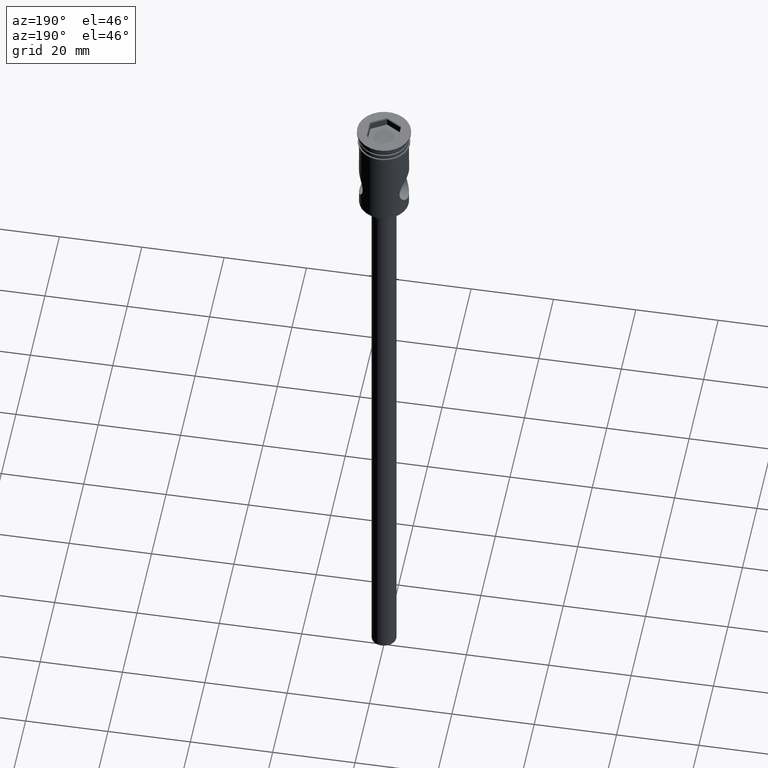
[diagram: clean part render]
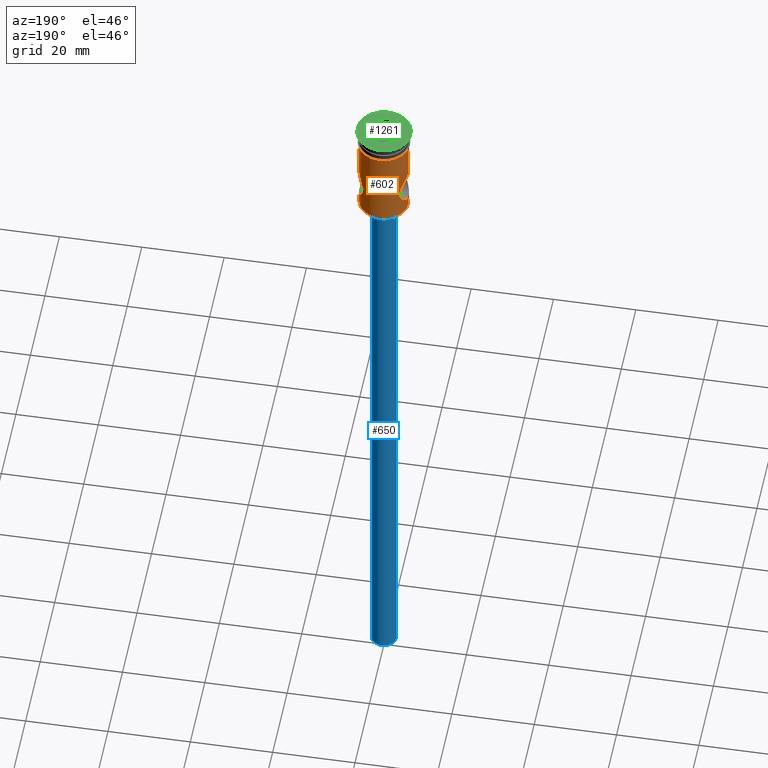
[diagram: same view with three faces highlighted in distinct colors, each labeled with its STEP entity id]
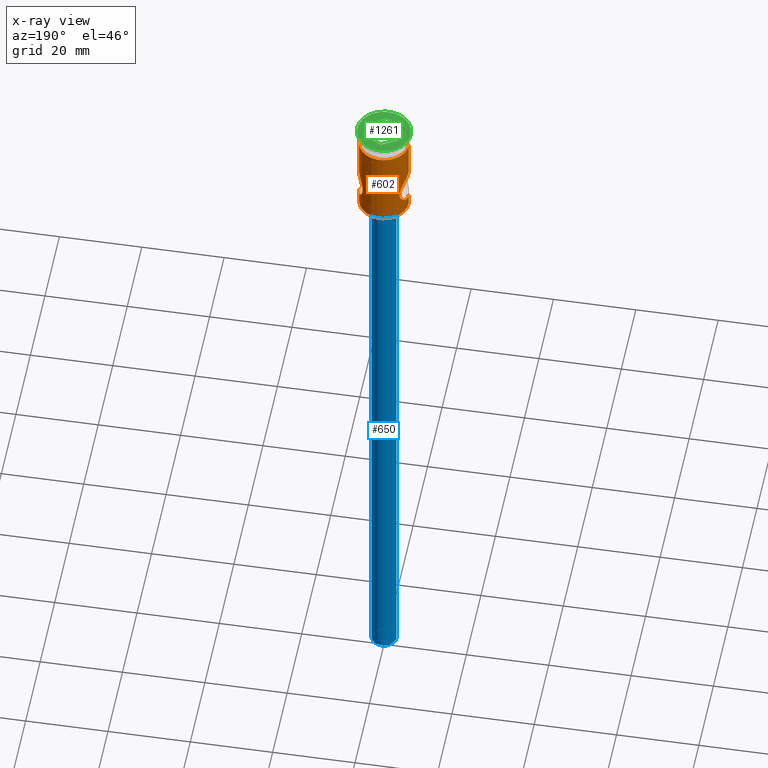
[diagram: x-ray of the same camera — body ghosted, the three highlighted faces saturated]
A machine part, auxiliary view with three faces highlighted in distinct colors.
The next image is the same camera in x-ray (body ghosted, the three faces saturated) — at least one of them is partly hidden behind the body in this view.
Their STEP definitions:

[orange] entity #602 — the highlighted cylindrical surface (edge-blend (fillet) strip) has radius 6 mm, axis along (-0, -0, 1).
#5 = CARTESIAN_POINT ( 'NONE',  ( 5.383168773068585544, 2.657528158016941866, -20.00025070472699440 ) ) ;
#18 = CARTESIAN_POINT ( 'NONE',  ( 5.383657517074641241, 2.656633614838565194, -13.99882376761189029 ) ) ;
#31 = VERTEX_POINT ( 'NONE', #142 ) ;
#32 = CARTESIAN_POINT ( 'NONE',  ( 5.857601659980624653, 1.323462767520508176, -13.21610827440704128 ) ) ;
#50 = DIRECTION ( 'NONE',  ( -0.000000000000000000, -0.000000000000000000, 1.000000000000000000 ) ) ;
#62 = CARTESIAN_POINT ( 'NONE',  ( -4.695721265758814766, 3.735538961856250673, -15.56388279734573032 ) ) ;
#77 = VERTEX_POINT ( 'NONE', #1366 ) ;
#94 = DIRECTION ( 'NONE',  ( -0.000000000000000000, -0.000000000000000000, 1.000000000000000000 ) ) ;
#124 = CARTESIAN_POINT ( 'NONE',  ( 4.591041808995887763, 3.863597314276563388, -18.06934695620068965 ) ) ;
#138 = CARTESIAN_POINT ( 'NONE',  ( 5.191140967328530031, 3.015547360259486442, -14.35969034782403853 ) ) ;
#141 = CIRCLE ( 'NONE', #577, 6.000000000000000000 ) ;
#142 = CARTESIAN_POINT ( 'NONE',  ( 5.999999999999997335, 0.000000000000000000, -23.80000000000000782 ) ) ;
#147 = CARTESIAN_POINT ( 'NONE',  ( 4.478683235531862650, 3.992711086781057350, -17.27669624262845005 ) ) ;
#170 = CARTESIAN_POINT ( 'NONE',  ( -5.476104105474132844, 2.462661959051749783, -13.83753213007002181 ) ) ;
#177 = CARTESIAN_POINT ( 'NONE',  ( 5.999999999999997335, 0.000000000000000000, 0.000000000000000000 ) ) ;
#178 = CARTESIAN_POINT ( 'NONE',  ( -5.192588128681414616, 3.012973207551337129, -19.64309212195293952 ) ) ;
#180 = ORIENTED_EDGE ( 'NONE', *, *, #445, .T. ) ;
#184 = CARTESIAN_POINT ( 'NONE',  ( -5.649709804834211369, 2.033012498713174576, -20.45435978024745438 ) ) ;
#191 = CARTESIAN_POINT ( 'NONE',  ( -5.647852088979878005, 2.038182248857265844, -13.54866401616081362 ) ) ;
#204 = ORIENTED_EDGE ( 'NONE', *, *, #406, .F. ) ;
#222 = DIRECTION ( 'NONE',  ( -0.000000000000000000, -0.000000000000000000, 1.000000000000000000 ) ) ;
#241 = CARTESIAN_POINT ( 'NONE',  ( 5.999999999999997335, 0.000000000000000000, -21.00000000000000355 ) ) ;
#249 = CARTESIAN_POINT ( 'NONE',  ( 5.092532074683503218, 3.177271535275488112, -14.55676189133447451 ) ) ;
#257 = CARTESIAN_POINT ( 'NONE',  ( 4.813287987224462938, 3.584502662014734664, -15.20585560854699558 ) ) ;
#265 = CARTESIAN_POINT ( 'NONE',  ( -5.999999999999997335, 0.000000000000000000, -21.00000000000000000 ) ) ;
#274 = CARTESIAN_POINT ( 'NONE',  ( -5.383857059222176389, 2.656136703825481504, -20.00147985586160004 ) ) ;
#286 = CARTESIAN_POINT ( 'NONE',  ( -4.590872927876621823, 3.863799755992654905, -18.06881075205813403 ) ) ;
#287 = CARTESIAN_POINT ( 'NONE',  ( -5.999999999999997335, 7.346847929928983029E-16, -13.00000000000000178 ) ) ;
#299 = CARTESIAN_POINT ( 'NONE',  ( -4.471969905858020233, 4.000185648662160531, -16.72948623710962224 ) ) ;
#306 = VECTOR ( 'NONE', #1023, 1000.000000000000000 ) ;
#314 = B_SPLINE_CURVE_WITH_KNOTS ( 'NONE', 3,
 ( #569, #923, #1176, #837, #597, #954, #191, #170, #501, #393, #607, #1068, #978, #62, #1083, #960, #1420, #1305, #299, #1412, #1201, #286, #724, #1406, #1194, #1058, #178, #274, #616, #184, #1185, #381, #404, #830, #857, #863 ),
 .UNSPECIFIED., .F., .F.,
 ( 4, 2, 2, 2, 2, 2, 2, 2, 2, 2, 2, 2, 2, 2, 2, 2, 2, 4 ),
 ( 0.01292789089967558668, 0.01373481658167571492, 0.01454174226367584317, 0.01534866794567596969, 0.01615559362767609794, 0.01696251930967622445, 0.01776944499167635444, 0.01817290783267641943, 0.01857637067367648442, 0.01938329635567661441, 0.02019022203767674092, 0.02099714771967687091, 0.02180407340167700089, 0.02261099908367712741, 0.02341792476567725739, 0.02422485044767738738, 0.02503177612967751736, 0.02583870181167764735 ),
 .UNSPECIFIED. ) ;
#345 = ORIENTED_EDGE ( 'NONE', *, *, #369, .F. ) ;
#348 = CARTESIAN_POINT ( 'NONE',  ( 4.904969006695426792, 3.459781783056854465, -19.02337662573056321 ) ) ;
#357 = ORIENTED_EDGE ( 'NONE', *, *, #838, .F. ) ;
#365 = CARTESIAN_POINT ( 'NONE',  ( 5.726993910597675708, 1.806673378235915450, -20.57837121075087694 ) ) ;
#369 = EDGE_CURVE ( 'NONE', #31, #77, #529, .T. ) ;
#381 = CARTESIAN_POINT ( 'NONE',  ( -5.856852607584092318, 1.326405963621358985, -20.78272040109924745 ) ) ;
#393 = CARTESIAN_POINT ( 'NONE',  ( -5.189877563605834965, 3.017637752822129205, -14.36220871751616635 ) ) ;
#395 = EDGE_CURVE ( 'NONE', #1356, #1154, #141, .T. ) ;
#404 = CARTESIAN_POINT ( 'NONE',  ( -5.910224399078535029, 1.067455424808948061, -20.86424616908553276 ) ) ;
#406 = EDGE_CURVE ( 'NONE', #1323, #1356, #645, .T. ) ;
#423 = DIRECTION ( 'NONE',  ( 1.000000000000000000, 0.000000000000000000, 0.000000000000000000 ) ) ;
#427 = EDGE_LOOP ( 'NONE', ( #1051, #806, #357, #180, #1108, #204, #488, #345 ) ) ;
#435 = CARTESIAN_POINT ( 'NONE',  ( -5.999999999999997335, 7.347880794884116778E-16, 0.000000000000000000 ) ) ;
#445 = EDGE_CURVE ( 'NONE', #587, #1154, #763, .T. ) ;
#458 = CARTESIAN_POINT ( 'NONE',  ( 4.496571596818668581, 3.973146032982571185, -16.46466415118837645 ) ) ;
#461 = CARTESIAN_POINT ( 'NONE',  ( -5.999999999999997335, 7.347880794884116778E-16, -23.80000000000000782 ) ) ;
#475 = CARTESIAN_POINT ( 'NONE',  ( 5.963516332756118032, 0.6739983983561916858, -13.05488329690675364 ) ) ;
#488 = ORIENTED_EDGE ( 'NONE', *, *, #950, .F. ) ;
#501 = CARTESIAN_POINT ( 'NONE',  ( -5.381440153112927227, 2.661027735845785891, -14.00283269631731109 ) ) ;
#529 = LINE ( 'NONE', #977, #1230 ) ;
#552 = CARTESIAN_POINT ( 'NONE',  ( 5.999999999999999112, 0.1348394930680404946, -13.00000000000000355 ) ) ;
#566 = CARTESIAN_POINT ( 'NONE',  ( 5.999999999999996447, 0.2736934833754733898, -21.00000000000001066 ) ) ;
#569 = CARTESIAN_POINT ( 'NONE',  ( -5.999999999999997335, 7.346847929928983029E-16, -13.00000000000000178 ) ) ;
#573 = CARTESIAN_POINT ( 'NONE',  ( 5.999999999999997335, 1.032865049536733409E-19, -13.00000000000000178 ) ) ;
#577 = AXIS2_PLACEMENT_3D ( 'NONE', #990, #94, #423 ) ;
#583 = CARTESIAN_POINT ( 'NONE',  ( 4.472242783135714106, 3.999880562432159614, -17.13916142668632858 ) ) ;
#587 = VERTEX_POINT ( 'NONE', #287 ) ;
#588 = CARTESIAN_POINT ( 'NONE',  ( -6.000000000000000000, 7.347880794884119736E-16, -3.799999999999998490 ) ) ;
#597 = CARTESIAN_POINT ( 'NONE',  ( -5.857856019569840811, 1.322596816769210371, -13.21570480751897314 ) ) ;
#602 = ADVANCED_FACE ( 'NONE', ( #1462 ), #1105, .T. ) ;
#607 = CARTESIAN_POINT ( 'NONE',  ( -5.092437400807711789, 3.177449308448081489, -14.55690956341038245 ) ) ;
#616 = CARTESIAN_POINT ( 'NONE',  ( -5.478456530086702081, 2.457412205291201968, -20.16652278763330486 ) ) ;
#645 = LINE ( 'NONE', #177, #874 ) ;
#659 = LINE ( 'NONE', #1221, #1376 ) ;
#681 = CARTESIAN_POINT ( 'NONE',  ( 4.521451790501867407, 3.944329598407792847, -17.67822252913732228 ) ) ;
#687 = CARTESIAN_POINT ( 'NONE',  ( 4.658800709564930642, 3.783111596241941488, -18.32471878455886838 ) ) ;
#693 = CARTESIAN_POINT ( 'NONE',  ( 4.815777407978871771, 3.581151401136684953, -18.80060207983888887 ) ) ;
#724 = CARTESIAN_POINT ( 'NONE',  ( -4.658564655011904421, 3.783396392401493724, -18.32386562586674827 ) ) ;
#745 = AXIS2_PLACEMENT_3D ( 'NONE', #1467, #222, #907 ) ;
#763 = LINE ( 'NONE', #435, #306 ) ;
#798 = VERTEX_POINT ( 'NONE', #461 ) ;
#806 = ORIENTED_EDGE ( 'NONE', *, *, #882, .T. ) ;
#809 = CARTESIAN_POINT ( 'NONE',  ( 5.977293684551372444, 0.5386543696670914594, -13.03412758888618939 ) ) ;
#830 = CARTESIAN_POINT ( 'NONE',  ( -5.981315622377779029, 0.5422886287917135784, -20.97212570072114346 ) ) ;
#837 = CARTESIAN_POINT ( 'NONE',  ( -5.909894408226808338, 1.069461442341117507, -13.13625666965422134 ) ) ;
#838 = EDGE_CURVE ( 'NONE', #587, #974, #314, .T. ) ;
#840 = EDGE_CURVE ( 'NONE', #31, #798, #1351, .T. ) ;
#857 = CARTESIAN_POINT ( 'NONE',  ( -5.999999999999999112, 0.2733318867810531350, -21.00000000000000000 ) ) ;
#863 = CARTESIAN_POINT ( 'NONE',  ( -5.999999999999997335, 0.000000000000000000, -21.00000000000000000 ) ) ;
#874 = VECTOR ( 'NONE', #887, 1000.000000000000000 ) ;
#881 = DIRECTION ( 'NONE',  ( -0.000000000000000000, -0.000000000000000000, 1.000000000000000000 ) ) ;
#882 = EDGE_CURVE ( 'NONE', #798, #974, #659, .T. ) ;
#887 = DIRECTION ( 'NONE',  ( -0.000000000000000000, -0.000000000000000000, 1.000000000000000000 ) ) ;
#907 = DIRECTION ( 'NONE',  ( 1.000000000000000000, 0.000000000000000000, 0.000000000000000000 ) ) ;
#909 = CARTESIAN_POINT ( 'NONE',  ( 5.999999999999997335, 1.032865049536733409E-19, -13.00000000000000178 ) ) ;
#918 = CARTESIAN_POINT ( 'NONE',  ( 4.904334778770656378, 3.460699021627383409, -14.97811247933654322 ) ) ;
#923 = CARTESIAN_POINT ( 'NONE',  ( -5.999999999999998224, 0.2693226933892789443, -13.00000000000000178 ) ) ;
#934 = CARTESIAN_POINT ( 'NONE',  ( 5.910558363407836246, 1.065472474882099840, -20.86475527808674713 ) ) ;
#950 = EDGE_CURVE ( 'NONE', #77, #1323, #1013, .T. ) ;
#954 = CARTESIAN_POINT ( 'NONE',  ( -5.726042320256659046, 1.810021776766353563, -13.42313354859388497 ) ) ;
#960 = CARTESIAN_POINT ( 'NONE',  ( -4.594981970458708709, 3.858589710197853240, -15.93762721160692664 ) ) ;
#974 = VERTEX_POINT ( 'NONE', #265 ) ;
#977 = CARTESIAN_POINT ( 'NONE',  ( 5.999999999999997335, 0.000000000000000000, 0.000000000000000000 ) ) ;
#978 = CARTESIAN_POINT ( 'NONE',  ( -4.812980838828971208, 3.584886833645904769, -15.20686804412651760 ) ) ;
#990 = CARTESIAN_POINT ( 'NONE',  ( 0.000000000000000000, 0.000000000000000000, -3.799999999999998490 ) ) ;
#1013 = B_SPLINE_CURVE_WITH_KNOTS ( 'NONE', 3,
 ( #241, #566, #1031, #934, #1136, #365, #1250, #1258, #5, #1369, #1038, #348, #693, #687, #124, #681, #1151, #147, #583, #1365, #458, #1048, #1387, #257, #918, #249, #138, #18, #1024, #1265, #1146, #32, #1393, #475, #809, #1273, #552, #573 ),
 .UNSPECIFIED., .F., .F.,
 ( 4, 2, 2, 2, 2, 2, 2, 2, 2, 2, 2, 2, 2, 2, 2, 2, 2, 2, 4 ),
 ( 0.000000000000000000, 0.0008079931812297244925, 0.001615986362459448551, 0.002423979543689172393, 0.003231972724918896669, 0.004039965906148620944, 0.004847959087378344786, 0.005655952268608070363, 0.006059948859222932284, 0.006463945449837794205, 0.007271938631067518047, 0.008079931812297241889, 0.008887924993526967465, 0.009695918174756691307, 0.01050391135598641688, 0.01131190453721614073, 0.01211989771844586630, 0.01252389430906072736, 0.01292789089967558841 ),
 .UNSPECIFIED. ) ;
#1023 = DIRECTION ( 'NONE',  ( -0.000000000000000000, -0.000000000000000000, 1.000000000000000000 ) ) ;
#1024 = CARTESIAN_POINT ( 'NONE',  ( 5.476434227958205447, 2.461837270032280145, -13.83697842493742947 ) ) ;
#1031 = CARTESIAN_POINT ( 'NONE',  ( 5.981377723958400061, 0.5413430384848008092, -20.97221760090189591 ) ) ;
#1038 = CARTESIAN_POINT ( 'NONE',  ( 5.092719808373194823, 3.176950723007529120, -19.44358897106424067 ) ) ;
#1048 = CARTESIAN_POINT ( 'NONE',  ( 4.589371484154252556, 3.865580797907775423, -15.93709879797100193 ) ) ;
#1051 = ORIENTED_EDGE ( 'NONE', *, *, #840, .T. ) ;
#1058 = CARTESIAN_POINT ( 'NONE',  ( -5.094941177298608181, 3.173493986384487542, -19.44836001449217733 ) ) ;
#1068 = CARTESIAN_POINT ( 'NONE',  ( -4.903670365680999232, 3.461664301119384834, -14.97966456857567685 ) ) ;
#1083 = CARTESIAN_POINT ( 'NONE',  ( -4.659573210257435427, 3.780337466250410561, -15.68607491293214729 ) ) ;
#1105 = CYLINDRICAL_SURFACE ( 'NONE', #745, 5.999999999999997335 ) ;
#1108 = ORIENTED_EDGE ( 'NONE', *, *, #395, .F. ) ;
#1136 = CARTESIAN_POINT ( 'NONE',  ( 5.857462785930378502, 1.323879775164644279, -20.78366906037870621 ) ) ;
#1143 = CARTESIAN_POINT ( 'NONE',  ( 6.000000000000000000, 0.000000000000000000, -3.799999999999998490 ) ) ;
#1146 = CARTESIAN_POINT ( 'NONE',  ( 5.726539468168462044, 1.808257897405588066, -13.42234802356430556 ) ) ;
#1151 = CARTESIAN_POINT ( 'NONE',  ( 4.503329929757906136, 3.964891535778145570, -17.54583673630848750 ) ) ;
#1154 = VERTEX_POINT ( 'NONE', #588 ) ;
#1176 = CARTESIAN_POINT ( 'NONE',  ( -5.981295349059706723, 0.5428679769166538938, -13.02790298971888028 ) ) ;
#1185 = CARTESIAN_POINT ( 'NONE',  ( -5.726721313513245981, 1.807412029573770118, -20.57793071042114619 ) ) ;
#1193 = DIRECTION ( 'NONE',  ( -0.000000000000000000, -0.000000000000000000, 1.000000000000000000 ) ) ;
#1194 = CARTESIAN_POINT ( 'NONE',  ( -4.905092851350609351, 3.459704293921746832, -19.02385203036241279 ) ) ;
#1201 = CARTESIAN_POINT ( 'NONE',  ( -4.497954016143988376, 3.971583117973677801, -17.54574033674491318 ) ) ;
#1221 = CARTESIAN_POINT ( 'NONE',  ( -5.999999999999997335, 7.347880794884116778E-16, 0.000000000000000000 ) ) ;
#1230 = VECTOR ( 'NONE', #1193, 1000.000000000000000 ) ;
#1250 = CARTESIAN_POINT ( 'NONE',  ( 5.649252793255032934, 2.034506580944977827, -20.45365450866940193 ) ) ;
#1258 = CARTESIAN_POINT ( 'NONE',  ( 5.476259375248750061, 2.462490082215233578, -20.16276605017705492 ) ) ;
#1265 = CARTESIAN_POINT ( 'NONE',  ( 5.647456945233584769, 2.039167636317595456, -13.54932708310013645 ) ) ;
#1273 = CARTESIAN_POINT ( 'NONE',  ( 5.995459719443724467, 0.2695386314927124549, -13.00680060135633376 ) ) ;
#1297 = CARTESIAN_POINT ( 'NONE',  ( 0.000000000000000000, 0.000000000000000000, -23.80000000000000782 ) ) ;
#1305 = CARTESIAN_POINT ( 'NONE',  ( -4.496976719000948641, 3.972684566356397440, -16.46183091757618655 ) ) ;
#1306 = AXIS2_PLACEMENT_3D ( 'NONE', #1297, #50, #1437 ) ;
#1323 = VERTEX_POINT ( 'NONE', #909 ) ;
#1351 = CIRCLE ( 'NONE', #1306, 5.999999999999997335 ) ;
#1356 = VERTEX_POINT ( 'NONE', #1143 ) ;
#1365 = CARTESIAN_POINT ( 'NONE',  ( 4.471926352484667966, 4.000234342895624629, -16.73210661165612123 ) ) ;
#1366 = CARTESIAN_POINT ( 'NONE',  ( 5.999999999999997335, 0.000000000000000000, -21.00000000000000355 ) ) ;
#1369 = CARTESIAN_POINT ( 'NONE',  ( 5.191849950367996236, 3.014242200430726992, -19.64164800058794214 ) ) ;
#1376 = VECTOR ( 'NONE', #881, 1000.000000000000000 ) ;
#1387 = CARTESIAN_POINT ( 'NONE',  ( 4.655957912614350214, 3.786615440986035974, -15.68502588106870199 ) ) ;
#1393 = CARTESIAN_POINT ( 'NONE',  ( 5.909734172871756286, 1.070628588321906216, -13.13649990372544885 ) ) ;
#1406 = CARTESIAN_POINT ( 'NONE',  ( -4.815345988703960245, 3.581725270876521705, -18.79943117160748400 ) ) ;
#1412 = CARTESIAN_POINT ( 'NONE',  ( -4.472303672293369559, 3.999812486286544289, -17.27597643780235259 ) ) ;
#1420 = CARTESIAN_POINT ( 'NONE',  ( -4.566410052139553422, 3.892191516930989970, -16.06790164049536074 ) ) ;
#1437 = DIRECTION ( 'NONE',  ( -1.000000000000000000, 0.000000000000000000, 0.000000000000000000 ) ) ;
#1462 = FACE_OUTER_BOUND ( 'NONE', #427, .T. ) ;
#1467 = CARTESIAN_POINT ( 'NONE',  ( 0.000000000000000000, 0.000000000000000000, 0.000000000000000000 ) ) ;

[blue] entity #650 — the highlighted cylindrical surface (edge-blend (fillet) strip) has radius 3 mm, axis along (-0, -0, 1).
#17 = CARTESIAN_POINT ( 'NONE',  ( -3.000000000000000444, 3.673940397442060361E-16, -27.00000000000000000 ) ) ;
#103 = CARTESIAN_POINT ( 'NONE',  ( 3.000000000000000444, 0.000000000000000000, -27.00000000000000000 ) ) ;
#105 = DIRECTION ( 'NONE',  ( 0.000000000000000000, 0.000000000000000000, -1.000000000000000000 ) ) ;
#200 = CARTESIAN_POINT ( 'NONE',  ( 0.000000000000000000, 0.000000000000000000, -174.0000000000000000 ) ) ;
#226 = CYLINDRICAL_SURFACE ( 'NONE', #462, 3.000000000000000444 ) ;
#329 = CIRCLE ( 'NONE', #790, 3.000000000000000444 ) ;
#425 = VECTOR ( 'NONE', #826, 1000.000000000000000 ) ;
#429 = VERTEX_POINT ( 'NONE', #891 ) ;
#462 = AXIS2_PLACEMENT_3D ( 'NONE', #200, #1124, #531 ) ;
#467 = VERTEX_POINT ( 'NONE', #17 ) ;
#481 = CARTESIAN_POINT ( 'NONE',  ( 3.000000000000000444, 0.000000000000000000, -174.0000000000000000 ) ) ;
#490 = EDGE_CURVE ( 'NONE', #429, #691, #329, .T. ) ;
#506 = LINE ( 'NONE', #481, #425 ) ;
#531 = DIRECTION ( 'NONE',  ( 1.000000000000000000, 0.000000000000000000, 0.000000000000000000 ) ) ;
#547 = DIRECTION ( 'NONE',  ( -1.000000000000000000, 0.000000000000000000, 0.000000000000000000 ) ) ;
#643 = CARTESIAN_POINT ( 'NONE',  ( 0.000000000000000000, 0.000000000000000000, -27.00000000000000000 ) ) ;
#650 = ADVANCED_FACE ( 'NONE', ( #661 ), #226, .T. ) ;
#661 = FACE_OUTER_BOUND ( 'NONE', #1342, .T. ) ;
#691 = VERTEX_POINT ( 'NONE', #1338 ) ;
#699 = AXIS2_PLACEMENT_3D ( 'NONE', #643, #885, #1001 ) ;
#790 = AXIS2_PLACEMENT_3D ( 'NONE', #1242, #105, #547 ) ;
#826 = DIRECTION ( 'NONE',  ( -0.000000000000000000, -0.000000000000000000, 1.000000000000000000 ) ) ;
#850 = VECTOR ( 'NONE', #1295, 1000.000000000000000 ) ;
#885 = DIRECTION ( 'NONE',  ( 0.000000000000000000, 0.000000000000000000, -1.000000000000000000 ) ) ;
#891 = CARTESIAN_POINT ( 'NONE',  ( -3.000000000000000444, 3.673940397442060361E-16, -174.0000000000000000 ) ) ;
#958 = LINE ( 'NONE', #1052, #850 ) ;
#1001 = DIRECTION ( 'NONE',  ( -1.000000000000000000, 0.000000000000000000, 0.000000000000000000 ) ) ;
#1017 = CIRCLE ( 'NONE', #699, 3.000000000000000444 ) ;
#1050 = EDGE_CURVE ( 'NONE', #429, #467, #958, .T. ) ;
#1052 = CARTESIAN_POINT ( 'NONE',  ( -3.000000000000000444, 3.673940397442060361E-16, -174.0000000000000000 ) ) ;
#1084 = EDGE_CURVE ( 'NONE', #691, #1180, #506, .T. ) ;
#1124 = DIRECTION ( 'NONE',  ( -0.000000000000000000, -0.000000000000000000, 1.000000000000000000 ) ) ;
#1180 = VERTEX_POINT ( 'NONE', #103 ) ;
#1190 = ORIENTED_EDGE ( 'NONE', *, *, #490, .F. ) ;
#1242 = CARTESIAN_POINT ( 'NONE',  ( 0.000000000000000000, 0.000000000000000000, -174.0000000000000000 ) ) ;
#1244 = EDGE_CURVE ( 'NONE', #467, #1180, #1017, .T. ) ;
#1262 = ORIENTED_EDGE ( 'NONE', *, *, #1050, .T. ) ;
#1295 = DIRECTION ( 'NONE',  ( -0.000000000000000000, -0.000000000000000000, 1.000000000000000000 ) ) ;
#1319 = ORIENTED_EDGE ( 'NONE', *, *, #1084, .F. ) ;
#1338 = CARTESIAN_POINT ( 'NONE',  ( 3.000000000000000444, 0.000000000000000000, -174.0000000000000000 ) ) ;
#1342 = EDGE_LOOP ( 'NONE', ( #1190, #1262, #1472, #1319 ) ) ;
#1472 = ORIENTED_EDGE ( 'NONE', *, *, #1244, .T. ) ;

[green] entity #1261 — the highlighted planar face has unit normal (0, -0, 1).
#3 = FACE_BOUND ( 'NONE', #496, .T. ) ;
#7 = CARTESIAN_POINT ( 'NONE',  ( 0.09999999999999689693, -4.445597072760113733, 0.000000000000000000 ) ) ;
#13 = CARTESIAN_POINT ( 'NONE',  ( -3.899999999999994138, 2.136195996001614361, 0.000000000000000000 ) ) ;
#14 = ORIENTED_EDGE ( 'NONE', *, *, #767, .T. ) ;
#26 = ORIENTED_EDGE ( 'NONE', *, *, #759, .T. ) ;
#37 = EDGE_LOOP ( 'NONE', ( #248, #14 ) ) ;
#60 = CARTESIAN_POINT ( 'NONE',  ( -3.899999999999994138, 2.251666049839537109, 0.000000000000000000 ) ) ;
#67 = AXIS2_PLACEMENT_3D ( 'NONE', #953, #836, #139 ) ;
#110 = VERTEX_POINT ( 'NONE', #525 ) ;
#111 = DIRECTION ( 'NONE',  ( -0.8660254037844387076, 0.4999999999999998890, 0.000000000000000000 ) ) ;
#127 = CARTESIAN_POINT ( 'NONE',  ( 5.124951389194159977E-16, -4.503332099679074219, 0.000000000000000000 ) ) ;
#139 = DIRECTION ( 'NONE',  ( 1.000000000000000000, 0.000000000000000000, 0.000000000000000000 ) ) ;
#140 = DIRECTION ( 'NONE',  ( -0.000000000000000000, -0.000000000000000000, 1.000000000000000000 ) ) ;
#144 = DIRECTION ( 'NONE',  ( -0.8660254037844388186, -0.4999999999999997780, 0.000000000000000000 ) ) ;
#192 = CIRCLE ( 'NONE', #717, 6.500000000000000000 ) ;
#203 = CARTESIAN_POINT ( 'NONE',  ( 3.899999999999993250, -2.251666049839539330, 0.000000000000000000 ) ) ;
#228 = CARTESIAN_POINT ( 'NONE',  ( 3.899999999999994138, 2.251666049839536665, 0.000000000000000000 ) ) ;
#248 = ORIENTED_EDGE ( 'NONE', *, *, #279, .T. ) ;
#258 = EDGE_CURVE ( 'NONE', #1117, #1257, #936, .T. ) ;
#279 = EDGE_CURVE ( 'NONE', #814, #110, #1328, .T. ) ;
#291 = CARTESIAN_POINT ( 'NONE',  ( -3.899999999999994138, -2.251666049839537553, 0.000000000000000000 ) ) ;
#293 = DIRECTION ( 'NONE',  ( 0.8660254037844385966, 0.4999999999999999445, 0.000000000000000000 ) ) ;
#308 = CARTESIAN_POINT ( 'NONE',  ( -0.09999999999999756306, 4.445597072760112844, 0.000000000000000000 ) ) ;
#333 = PLANE ( 'NONE',  #557 ) ;
#344 = DIRECTION ( 'NONE',  ( 1.000000000000000000, 0.000000000000000000, 0.000000000000000000 ) ) ;
#360 = EDGE_CURVE ( 'NONE', #1134, #1117, #403, .T. ) ;
#366 = ORIENTED_EDGE ( 'NONE', *, *, #360, .T. ) ;
#373 = DIRECTION ( 'NONE',  ( 0.8660254037844387076, -0.4999999999999998335, 0.000000000000000000 ) ) ;
#397 = VECTOR ( 'NONE', #293, 1000.000000000000114 ) ;
#403 = LINE ( 'NONE', #308, #397 ) ;
#496 = EDGE_LOOP ( 'NONE', ( #644, #26, #366, #900, #856, #657 ) ) ;
#525 = CARTESIAN_POINT ( 'NONE',  ( -6.500000000000000000, 7.960204194457795477E-16, 0.000000000000000000 ) ) ;
#536 = VECTOR ( 'NONE', #1153, 1000.000000000000000 ) ;
#550 = LINE ( 'NONE', #1012, #654 ) ;
#553 = VECTOR ( 'NONE', #373, 1000.000000000000000 ) ;
#557 = AXIS2_PLACEMENT_3D ( 'NONE', #1125, #581, #1132 ) ;
#581 = DIRECTION ( 'NONE',  ( 0.000000000000000000, -0.000000000000000000, 1.000000000000000000 ) ) ;
#585 = LINE ( 'NONE', #13, #536 ) ;
#644 = ORIENTED_EDGE ( 'NONE', *, *, #999, .T. ) ;
#654 = VECTOR ( 'NONE', #901, 1000.000000000000000 ) ;
#657 = ORIENTED_EDGE ( 'NONE', *, *, #1310, .T. ) ;
#703 = CARTESIAN_POINT ( 'NONE',  ( -3.799999999999998046, -2.309401076758498039, 0.000000000000000000 ) ) ;
#717 = AXIS2_PLACEMENT_3D ( 'NONE', #1033, #140, #344 ) ;
#759 = EDGE_CURVE ( 'NONE', #1055, #1134, #585, .T. ) ;
#767 = EDGE_CURVE ( 'NONE', #110, #814, #192, .T. ) ;
#814 = VERTEX_POINT ( 'NONE', #1054 ) ;
#836 = DIRECTION ( 'NONE',  ( -0.000000000000000000, -0.000000000000000000, 1.000000000000000000 ) ) ;
#856 = ORIENTED_EDGE ( 'NONE', *, *, #1339, .T. ) ;
#900 = ORIENTED_EDGE ( 'NONE', *, *, #258, .T. ) ;
#901 = DIRECTION ( 'NONE',  ( -2.030154863158322842E-16, -1.000000000000000000, 0.000000000000000000 ) ) ;
#921 = VECTOR ( 'NONE', #144, 1000.000000000000114 ) ;
#927 = LINE ( 'NONE', #703, #1430 ) ;
#936 = LINE ( 'NONE', #1395, #553 ) ;
#953 = CARTESIAN_POINT ( 'NONE',  ( 0.000000000000000000, 0.000000000000000000, 0.000000000000000000 ) ) ;
#999 = EDGE_CURVE ( 'NONE', #1272, #1055, #927, .T. ) ;
#1012 = CARTESIAN_POINT ( 'NONE',  ( 3.899999999999993250, -2.136195996001616138, 0.000000000000000000 ) ) ;
#1033 = CARTESIAN_POINT ( 'NONE',  ( 0.000000000000000000, 0.000000000000000000, 0.000000000000000000 ) ) ;
#1035 = LINE ( 'NONE', #7, #921 ) ;
#1054 = CARTESIAN_POINT ( 'NONE',  ( 6.500000000000000000, 0.000000000000000000, 0.000000000000000000 ) ) ;
#1055 = VERTEX_POINT ( 'NONE', #291 ) ;
#1117 = VERTEX_POINT ( 'NONE', #1181 ) ;
#1125 = CARTESIAN_POINT ( 'NONE',  ( 0.000000000000000000, 0.000000000000000000, 0.000000000000000000 ) ) ;
#1132 = DIRECTION ( 'NONE',  ( 1.000000000000000000, 0.000000000000000000, 0.000000000000000000 ) ) ;
#1134 = VERTEX_POINT ( 'NONE', #60 ) ;
#1153 = DIRECTION ( 'NONE',  ( 0.000000000000000000, 1.000000000000000000, 0.000000000000000000 ) ) ;
#1181 = CARTESIAN_POINT ( 'NONE',  ( -1.088215527527321583E-15, 4.503332099679073330, 0.000000000000000000 ) ) ;
#1225 = VERTEX_POINT ( 'NONE', #203 ) ;
#1256 = FACE_OUTER_BOUND ( 'NONE', #37, .T. ) ;
#1257 = VERTEX_POINT ( 'NONE', #228 ) ;
#1261 = ADVANCED_FACE ( 'NONE', ( #3, #1256 ), #333, .T. ) ;
#1272 = VERTEX_POINT ( 'NONE', #127 ) ;
#1310 = EDGE_CURVE ( 'NONE', #1225, #1272, #1035, .T. ) ;
#1328 = CIRCLE ( 'NONE', #67, 6.500000000000000000 ) ;
#1339 = EDGE_CURVE ( 'NONE', #1257, #1225, #550, .T. ) ;
#1395 = CARTESIAN_POINT ( 'NONE',  ( 3.799999999999997602, 2.309401076758497595, 0.000000000000000000 ) ) ;
#1430 = VECTOR ( 'NONE', #111, 1000.000000000000000 ) ;